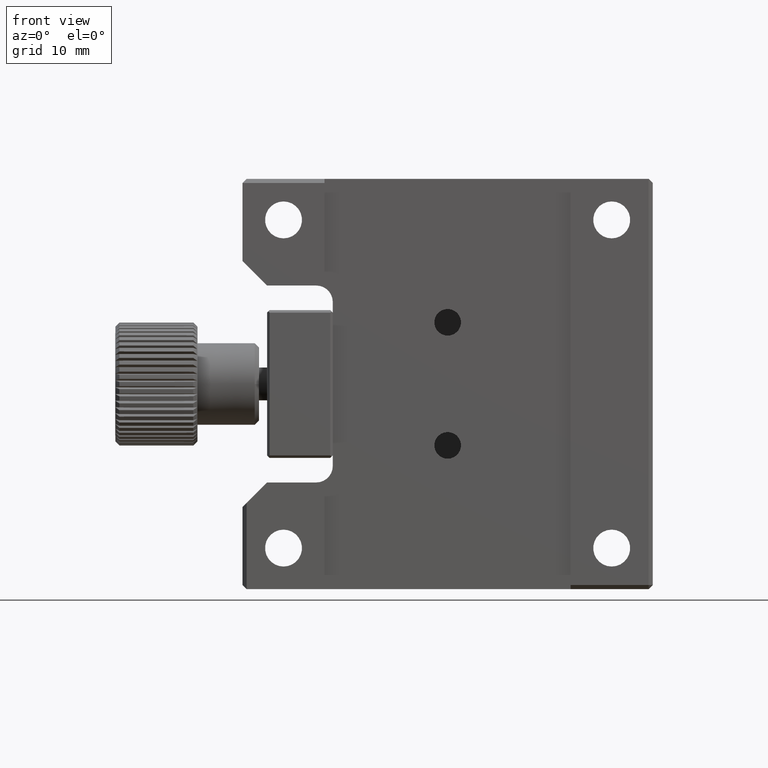
[diagram: clean part render]
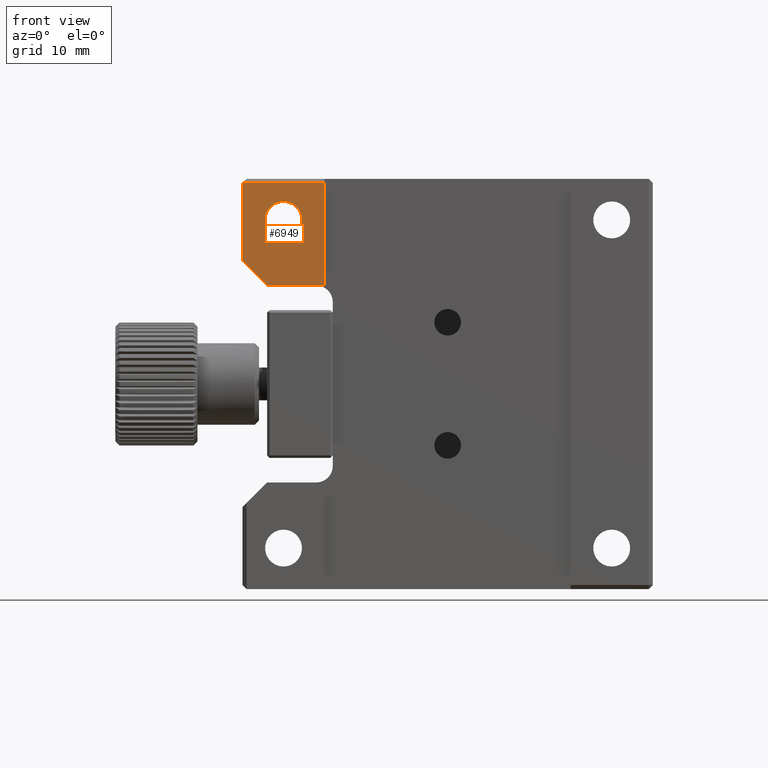
[diagram: same view with one face highlighted and labeled with its STEP entity id]
A machine part, front view. The second image highlights one B-rep face of the part: STEP entity #6949.
In plain terms, the highlighted planar face has unit normal (0, 1, 0).
Its self-contained STEP definition (entity closure, byte-faithful):
#1062 = CARTESIAN_POINT ( 'NONE',  ( -20.00000000000000000, -8.000000000000000000, 17.75000000000000355 ) ) ;
#2118 = ORIENTED_EDGE ( 'NONE', *, *, #4737, .T. ) ;
#2259 = EDGE_CURVE ( 'NONE', #3965, #5004, #15874, .T. ) ;
#2284 = VERTEX_POINT ( 'NONE', #1062 ) ;
#2637 = EDGE_LOOP ( 'NONE', ( #2725, #2118, #6422, #15660, #7150 ) ) ;
#2725 = ORIENTED_EDGE ( 'NONE', *, *, #10769, .F. ) ;
#2870 = VERTEX_POINT ( 'NONE', #14054 ) ;
#2920 = CARTESIAN_POINT ( 'NONE',  ( -25.00000000000000000, -8.000000000000001776, 24.50000000000000000 ) ) ;
#2936 = DIRECTION ( 'NONE',  ( 0.000000000000000000, -1.000000000000000000, 0.000000000000000000 ) ) ;
#3095 = EDGE_LOOP ( 'NONE', ( #3580 ) ) ;
#3101 = CARTESIAN_POINT ( 'NONE',  ( -20.00000000000000000, -8.000000000000000000, 20.00000000000000000 ) ) ;
#3138 = VECTOR ( 'NONE', #4618, 1000.000000000000000 ) ;
#3357 = VECTOR ( 'NONE', #9027, 1000.000000000000000 ) ;
#3580 = ORIENTED_EDGE ( 'NONE', *, *, #15298, .F. ) ;
#3965 = VERTEX_POINT ( 'NONE', #9714 ) ;
#4233 = LINE ( 'NONE', #13007, #10169 ) ;
#4578 = DIRECTION ( 'NONE',  ( 0.000000000000000000, -0.000000000000000000, 1.000000000000000000 ) ) ;
#4612 = AXIS2_PLACEMENT_3D ( 'NONE', #12064, #4820, #4578 ) ;
#4618 = DIRECTION ( 'NONE',  ( -0.7071067811865480168, 0.000000000000000000, 0.7071067811865470176 ) ) ;
#4737 = EDGE_CURVE ( 'NONE', #9786, #5004, #13521, .T. ) ;
#4798 = AXIS2_PLACEMENT_3D ( 'NONE', #3101, #2936, #10489 ) ;
#4820 = DIRECTION ( 'NONE',  ( 0.000000000000000000, 1.000000000000000000, 0.000000000000000000 ) ) ;
#5004 = VERTEX_POINT ( 'NONE', #14898 ) ;
#5394 = DIRECTION ( 'NONE',  ( -0.000000000000000000, 0.000000000000000000, -1.000000000000000000 ) ) ;
#5821 = VERTEX_POINT ( 'NONE', #11307 ) ;
#6205 = CARTESIAN_POINT ( 'NONE',  ( -25.00000000000000000, -8.000000000000000000, -25.00000000000000000 ) ) ;
#6422 = ORIENTED_EDGE ( 'NONE', *, *, #2259, .F. ) ;
#6621 = EDGE_CURVE ( 'NONE', #5821, #3965, #15212, .T. ) ;
#6761 = DIRECTION ( 'NONE',  ( 1.000000000000000000, 0.000000000000000000, -0.000000000000000000 ) ) ;
#6949 = ADVANCED_FACE ( 'NONE', ( #11064, #16075 ), #13375, .F. ) ;
#7150 = ORIENTED_EDGE ( 'NONE', *, *, #10455, .F. ) ;
#8783 = CARTESIAN_POINT ( 'NONE',  ( -25.00000000000000000, -8.000000000000000000, 12.00000000000000000 ) ) ;
#9027 = DIRECTION ( 'NONE',  ( -1.000000000000000000, 0.000000000000000000, -0.000000000000000000 ) ) ;
#9401 = VECTOR ( 'NONE', #12299, 1000.000000000000000 ) ;
#9475 = CARTESIAN_POINT ( 'NONE',  ( -25.00000000000000000, -8.000000000000000000, 15.00000000000000000 ) ) ;
#9611 = VECTOR ( 'NONE', #5394, 1000.000000000000000 ) ;
#9714 = CARTESIAN_POINT ( 'NONE',  ( -22.00000000000000355, -8.000000000000000000, 12.00000000000000178 ) ) ;
#9786 = VERTEX_POINT ( 'NONE', #2920 ) ;
#10169 = VECTOR ( 'NONE', #6761, 1000.000000000000000 ) ;
#10455 = EDGE_CURVE ( 'NONE', #2870, #5821, #11876, .T. ) ;
#10489 = DIRECTION ( 'NONE',  ( 0.000000000000000000, 0.000000000000000000, -1.000000000000000000 ) ) ;
#10769 = EDGE_CURVE ( 'NONE', #9786, #2870, #4233, .T. ) ;
#11064 = FACE_BOUND ( 'NONE', #3095, .T. ) ;
#11307 = CARTESIAN_POINT ( 'NONE',  ( -15.00000000000000000, -8.000000000000000000, 12.00000000000000178 ) ) ;
#11876 = LINE ( 'NONE', #14189, #9611 ) ;
#11931 = CIRCLE ( 'NONE', #4798, 2.249999999999998668 ) ;
#12064 = CARTESIAN_POINT ( 'NONE',  ( 0.000000000000000000, -8.000000000000000000, 0.000000000000000000 ) ) ;
#12299 = DIRECTION ( 'NONE',  ( 0.000000000000000000, 0.000000000000000000, -1.000000000000000000 ) ) ;
#13007 = CARTESIAN_POINT ( 'NONE',  ( 0.000000000000000000, -8.000000000000000000, 24.50000000000000000 ) ) ;
#13375 = PLANE ( 'NONE',  #4612 ) ;
#13521 = LINE ( 'NONE', #6205, #9401 ) ;
#14054 = CARTESIAN_POINT ( 'NONE',  ( -15.00000000000000000, -8.000000000000000000, 24.50000000000000355 ) ) ;
#14189 = CARTESIAN_POINT ( 'NONE',  ( -15.00000000000000000, -8.000000000000000000, 0.000000000000000000 ) ) ;
#14898 = CARTESIAN_POINT ( 'NONE',  ( -25.00000000000000355, -8.000000000000000000, 15.00000000000000000 ) ) ;
#15212 = LINE ( 'NONE', #8783, #3357 ) ;
#15298 = EDGE_CURVE ( 'NONE', #2284, #2284, #11931, .T. ) ;
#15660 = ORIENTED_EDGE ( 'NONE', *, *, #6621, .F. ) ;
#15874 = LINE ( 'NONE', #9475, #3138 ) ;
#16075 = FACE_OUTER_BOUND ( 'NONE', #2637, .T. ) ;